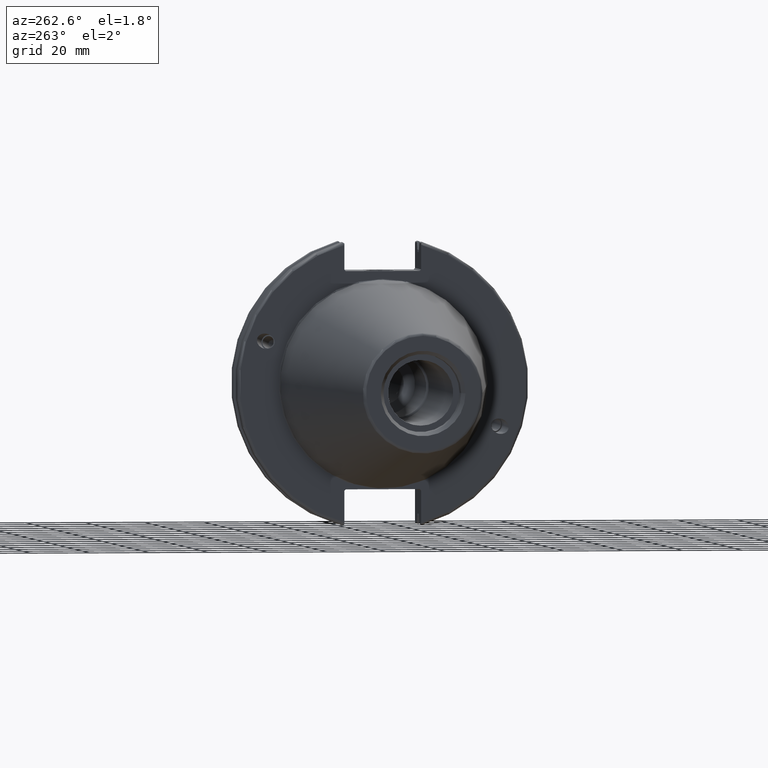
[diagram: clean part render]
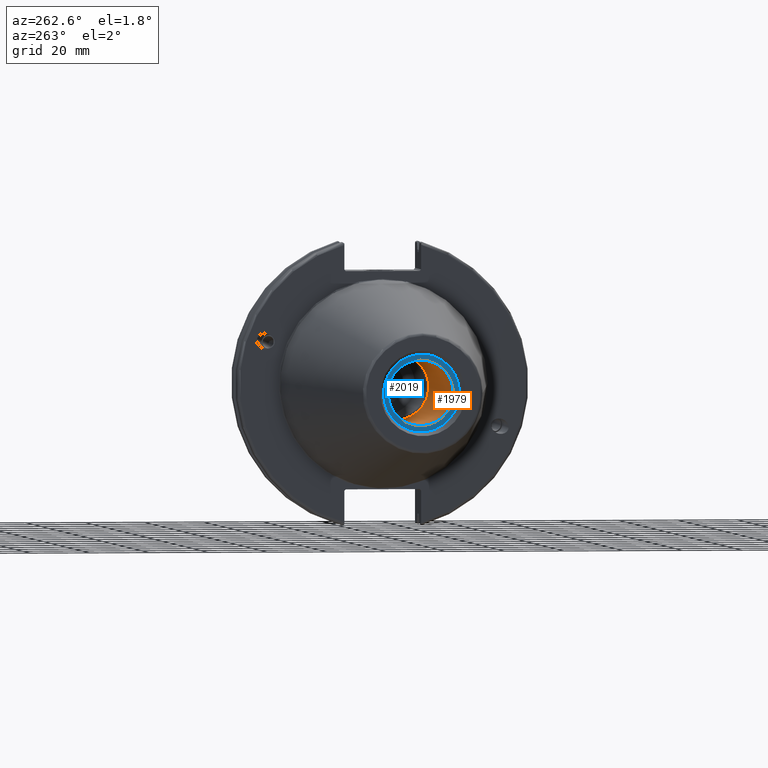
[diagram: same view with the hole feature highlighted: cylindrical wall and planar end face, labeled with their STEP entity ids]
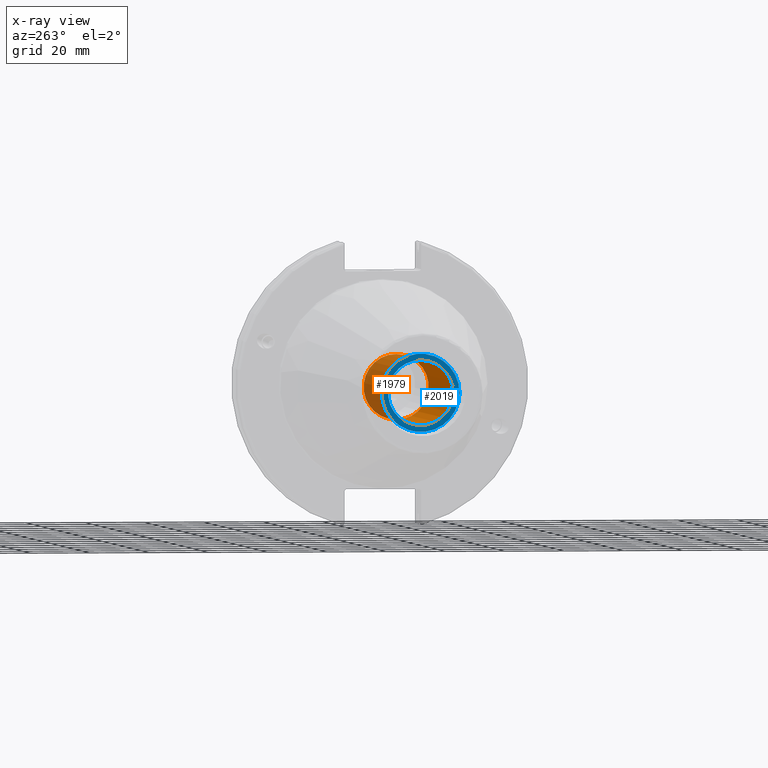
[diagram: x-ray of the same camera — body ghosted, the hole faces saturated]
A machine part, auxiliary view. The highlighted faces form one hole feature of diameter 21.971 mm: the cylindrical wall (entity #1979, orange) and its adjacent planar end face (entity #2019, blue) — they share a circular edge in the B-rep.
The next image is the same camera in x-ray (body ghosted, the hole faces saturated) — the bore reads through the body.
Wall:
#234=FACE_OUTER_BOUND('',#359,.T.);
#359=EDGE_LOOP('',(#1616,#1617,#1618,#1619));
#461=LINE('',#3679,#568);
#568=VECTOR('',#2703,10.9855);
#733=CIRCLE('',#2222,10.9855);
#734=CIRCLE('',#2224,10.9855);
#899=VERTEX_POINT('',#3673);
#900=VERTEX_POINT('',#3677);
#1156=EDGE_CURVE('',#899,#899,#733,.T.);
#1158=EDGE_CURVE('',#900,#900,#734,.T.);
#1159=EDGE_CURVE('',#900,#899,#461,.T.);
#1616=ORIENTED_EDGE('',*,*,#1158,.F.);
#1617=ORIENTED_EDGE('',*,*,#1159,.T.);
#1618=ORIENTED_EDGE('',*,*,#1156,.F.);
#1619=ORIENTED_EDGE('',*,*,#1159,.F.);
#1905=CYLINDRICAL_SURFACE('',#2223,10.9855);
#1979=ADVANCED_FACE('',(#234),#1905,.F.);
#2222=AXIS2_PLACEMENT_3D('',#3674,#2696,#2697);
#2223=AXIS2_PLACEMENT_3D('',#3676,#2699,#2700);
#2224=AXIS2_PLACEMENT_3D('',#3678,#2701,#2702);
#2696=DIRECTION('center_axis',(-1.,0.,0.));
#2697=DIRECTION('ref_axis',(0.,0.,1.));
#2699=DIRECTION('center_axis',(-1.,0.,0.));
#2700=DIRECTION('ref_axis',(0.,0.,1.));
#2701=DIRECTION('center_axis',(1.,0.,0.));
#2702=DIRECTION('ref_axis',(0.,0.,1.));
#2703=DIRECTION('',(1.,0.,0.));
#3673=CARTESIAN_POINT('',(-31.6,-1.34533574120333E-15,-10.9855));
#3674=CARTESIAN_POINT('Origin',(-31.6,0.,0.));
#3676=CARTESIAN_POINT('Origin',(-66.6,0.,0.));
#3677=CARTESIAN_POINT('',(-95.25,1.34533574120333E-15,-10.9855));
#3678=CARTESIAN_POINT('Origin',(-95.25,0.,0.));
#3679=CARTESIAN_POINT('',(-66.6,-1.34533574120333E-15,-10.9855));
End face:
#67=PLANE('',#2290);
#109=FACE_BOUND('',#405,.T.);
#274=FACE_OUTER_BOUND('',#404,.T.);
#404=EDGE_LOOP('',(#1847));
#405=EDGE_LOOP('',(#1848));
#734=CIRCLE('',#2224,10.9855);
#761=CIRCLE('',#2291,13.1);
#900=VERTEX_POINT('',#3677);
#967=VERTEX_POINT('',#4003);
#1158=EDGE_CURVE('',#900,#900,#734,.T.);
#1265=EDGE_CURVE('',#967,#967,#761,.T.);
#1847=ORIENTED_EDGE('',*,*,#1265,.F.);
#1848=ORIENTED_EDGE('',*,*,#1158,.T.);
#2019=ADVANCED_FACE('',(#274,#109),#67,.T.);
#2224=AXIS2_PLACEMENT_3D('',#3678,#2701,#2702);
#2290=AXIS2_PLACEMENT_3D('',#4002,#2889,#2890);
#2291=AXIS2_PLACEMENT_3D('',#4004,#2891,#2892);
#2701=DIRECTION('center_axis',(1.,0.,0.));
#2702=DIRECTION('ref_axis',(0.,0.,1.));
#2889=DIRECTION('center_axis',(-1.,0.,0.));
#2890=DIRECTION('ref_axis',(0.,0.,1.));
#2891=DIRECTION('center_axis',(1.,0.,0.));
#2892=DIRECTION('ref_axis',(0.,0.,-1.));
#3677=CARTESIAN_POINT('',(-95.25,1.34533574120333E-15,-10.9855));
#3678=CARTESIAN_POINT('Origin',(-95.25,0.,0.));
#4002=CARTESIAN_POINT('Origin',(-95.25,13.1,0.));
#4003=CARTESIAN_POINT('',(-95.25,-13.1,-1.60428730688303E-15));
#4004=CARTESIAN_POINT('Origin',(-95.25,0.,0.));